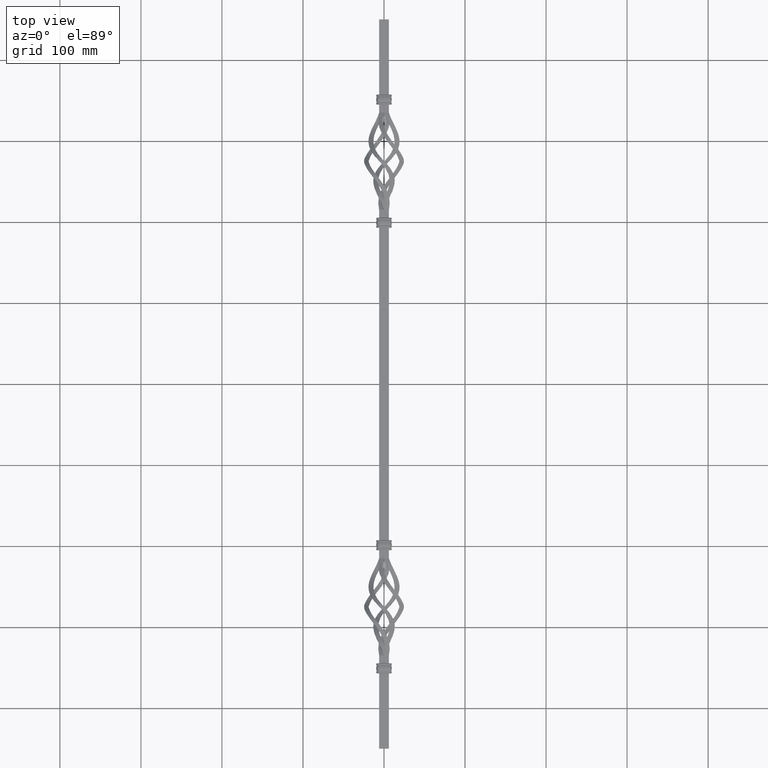
[diagram: clean part render]
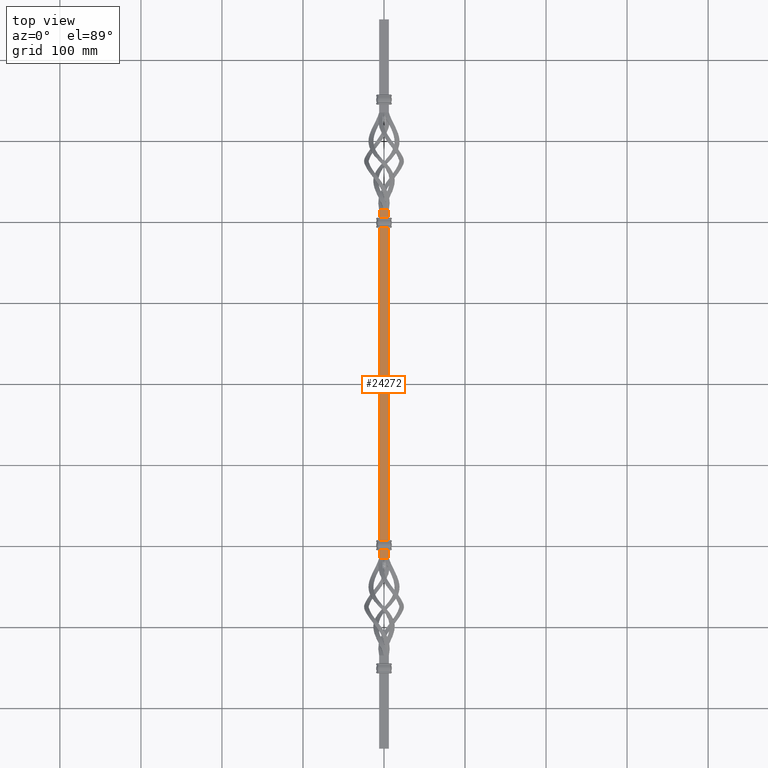
[diagram: same view with one face highlighted and labeled with its STEP entity id]
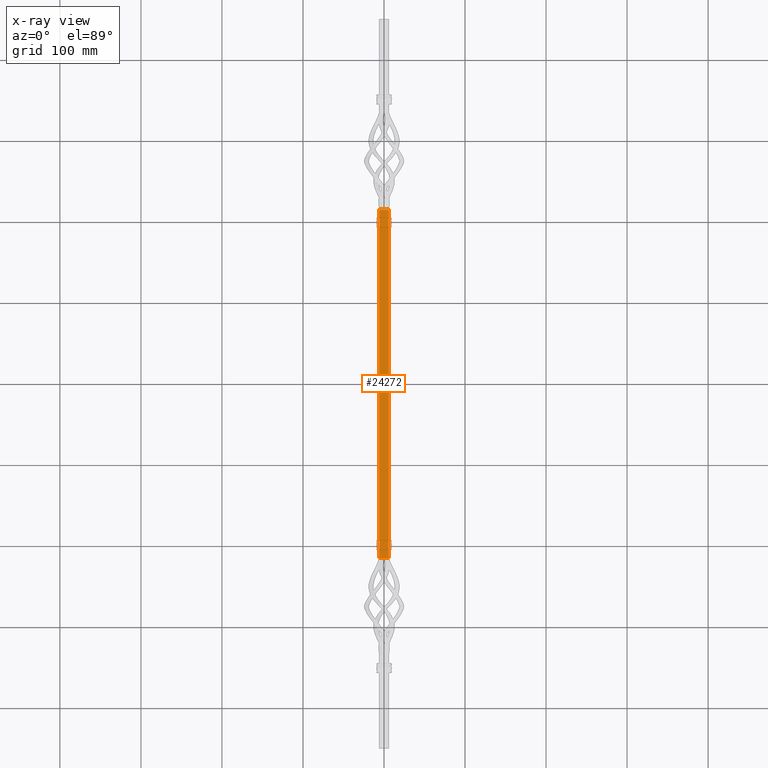
[diagram: x-ray of the same camera — body ghosted, the highlighted face saturated]
A machine part, top view. The second image highlights one B-rep face of the part: STEP entity #24272.
The next image is the same camera in x-ray: the body ghosted, the highlighted face saturated — about 0% of this face is hidden behind the body in this view.
In plain terms, the highlighted planar face has unit normal (0, 0, -1).
Its self-contained STEP definition (entity closure, byte-faithful):
#19 = DIRECTION ( 'NONE',  ( 1.000000000000000000, -0.000000000000000000, 0.000000000000000000 ) ) ;
#20 = CARTESIAN_POINT ( 'NONE',  ( 5.900000000000132694, -194.0000000000000000, 5.999999999999939604 ) ) ;
#220 = CARTESIAN_POINT ( 'NONE',  ( -6.000000000000000000, 16.97056274847694013, 5.999999999999938716 ) ) ;
#423 = VERTEX_POINT ( 'NONE', #12745 ) ;
#454 = VERTEX_POINT ( 'NONE', #20442 ) ;
#603 = CARTESIAN_POINT ( 'NONE',  ( -5.900000000000132694, -193.8739578294214994, 5.999999999999938716 ) ) ;
#763 = DIRECTION ( 'NONE',  ( -0.000000000000000000, -1.000000000000000000, -0.000000000000000000 ) ) ;
#770 = B_SPLINE_CURVE_WITH_KNOTS ( 'NONE', 3,
 ( #14130, #20899, #21221, #30813 ),
 .UNSPECIFIED., .F., .F.,
 ( 4, 4 ),
 ( 0.001730514864907466664, 0.002100971035979398369 ),
 .UNSPECIFIED. ) ;
#795 = CARTESIAN_POINT ( 'NONE',  ( 5.899999999728107625, 194.0000000000000000, 5.999999999999939604 ) ) ;
#869 = VERTEX_POINT ( 'NONE', #3052 ) ;
#1044 = LINE ( 'NONE', #29783, #25693 ) ;
#1160 = DIRECTION ( 'NONE',  ( -0.000000000000000000, -1.000000000000000000, -0.000000000000000000 ) ) ;
#1362 = EDGE_CURVE ( 'NONE', #4686, #5794, #18584, .T. ) ;
#1457 = FACE_OUTER_BOUND ( 'NONE', #14743, .T. ) ;
#1478 = CARTESIAN_POINT ( 'NONE',  ( -6.000000000000000000, -215.0000000000000284, 5.999999999999937828 ) ) ;
#1653 = CARTESIAN_POINT ( 'NONE',  ( 5.900000000000132694, -194.0000000000000000, 5.999999999999939604 ) ) ;
#1698 = CARTESIAN_POINT ( 'NONE',  ( -6.000000000000000000, 16.97056274847694013, 5.999999999999938716 ) ) ;
#1950 = CARTESIAN_POINT ( 'NONE',  ( -5.900000000272163980, 204.0000000000000284, 5.999999999999938716 ) ) ;
#2356 = LINE ( 'NONE', #1698, #23994 ) ;
#2389 = AXIS2_PLACEMENT_3D ( 'NONE', #17734, #6069, #3461 ) ;
#2447 = CARTESIAN_POINT ( 'NONE',  ( -2.720247659424102701E-10, 215.0000000000000284, 6.000000000000023093 ) ) ;
#2452 = CARTESIAN_POINT ( 'NONE',  ( 5.941145397888342394, -193.7526343189825013, 5.999999999999938716 ) ) ;
#2645 = ORIENTED_EDGE ( 'NONE', *, *, #7481, .T. ) ;
#2698 = B_SPLINE_CURVE_WITH_KNOTS ( 'NONE', 3,
 ( #23227, #11557, #20816, #14052 ),
 .UNSPECIFIED., .F., .F.,
 ( 4, 4 ),
 ( 0.001310261336107143917, 0.001680737425676016644 ),
 .UNSPECIFIED. ) ;
#2773 = CARTESIAN_POINT ( 'NONE',  ( -5.900000000000132694, -205.0000000000000284, 5.999999999999938716 ) ) ;
#2847 = LINE ( 'NONE', #17666, #8465 ) ;
#2928 = CARTESIAN_POINT ( 'NONE',  ( -6.000000000000000888, -193.6435504596053363, 5.999999999999938716 ) ) ;
#2953 = ORIENTED_EDGE ( 'NONE', *, *, #3513, .T. ) ;
#3004 = CARTESIAN_POINT ( 'NONE',  ( -5.900000000272156875, 194.0000000000000000, 5.999999999999939604 ) ) ;
#3052 = CARTESIAN_POINT ( 'NONE',  ( 5.899999999728106737, 204.0000000000000284, 5.999999999999938716 ) ) ;
#3206 = CARTESIAN_POINT ( 'NONE',  ( -5.900000000000130917, -204.1260895240804700, 5.999999999999938716 ) ) ;
#3318 = CARTESIAN_POINT ( 'NONE',  ( -6.000000000000000000, -204.3564495404118020, 5.999999999999938716 ) ) ;
#3439 = CARTESIAN_POINT ( 'NONE',  ( 5.900000000000132694, -205.0000000000000284, 5.999999999999938716 ) ) ;
#3461 = DIRECTION ( 'NONE',  ( -1.000000000000000000, 0.000000000000000000, -0.000000000000000000 ) ) ;
#3513 = EDGE_CURVE ( 'NONE', #27269, #15966, #17337, .T. ) ;
#3516 = VERTEX_POINT ( 'NONE', #14372 ) ;
#3679 = B_SPLINE_CURVE_WITH_KNOTS ( 'NONE', 3,
 ( #2928, #7846, #603, #17429 ),
 .UNSPECIFIED., .F., .F.,
 ( 4, 4 ),
 ( 0.001310261336106768350, 0.001680737425676016210 ),
 .UNSPECIFIED. ) ;
#3713 = ORIENTED_EDGE ( 'NONE', *, *, #10454, .F. ) ;
#3730 = VECTOR ( 'NONE', #11539, 1000.000000000000000 ) ;
#4686 = VERTEX_POINT ( 'NONE', #2447 ) ;
#4692 = VERTEX_POINT ( 'NONE', #19040 ) ;
#4794 = CARTESIAN_POINT ( 'NONE',  ( -6.000000000000001776, 204.3564495398905194, 5.999999999999938716 ) ) ;
#5079 = EDGE_CURVE ( 'NONE', #8742, #27269, #2356, .T. ) ;
#5339 = ORIENTED_EDGE ( 'NONE', *, *, #5803, .T. ) ;
#5570 = ORIENTED_EDGE ( 'NONE', *, *, #15289, .T. ) ;
#5794 = VERTEX_POINT ( 'NONE', #20083 ) ;
#5803 = EDGE_CURVE ( 'NONE', #28648, #8742, #10888, .T. ) ;
#6023 = EDGE_CURVE ( 'NONE', #12996, #28648, #18740, .T. ) ;
#6069 = DIRECTION ( 'NONE',  ( 0.000000000000000000, 0.000000000000000000, -1.000000000000000000 ) ) ;
#6145 = DIRECTION ( 'NONE',  ( 0.000000000000000000, 1.000000000000000000, 0.000000000000000000 ) ) ;
#6207 = VECTOR ( 'NONE', #1160, 1000.000000000000000 ) ;
#6616 = EDGE_CURVE ( 'NONE', #5794, #423, #18339, .T. ) ;
#6963 = LINE ( 'NONE', #24954, #6207 ) ;
#7481 = EDGE_CURVE ( 'NONE', #26600, #12996, #3679, .T. ) ;
#7733 = CARTESIAN_POINT ( 'NONE',  ( 5.900000000000203748, -204.0000000000000284, 5.999999999999938716 ) ) ;
#7846 = CARTESIAN_POINT ( 'NONE',  ( -5.941056446958724813, -193.7527991847809687, 5.999999999999938716 ) ) ;
#7858 = DIRECTION ( 'NONE',  ( 1.000000000000000000, -0.000000000000000000, 0.000000000000000000 ) ) ;
#7877 = ORIENTED_EDGE ( 'NONE', *, *, #30483, .T. ) ;
#7906 = EDGE_CURVE ( 'NONE', #24371, #869, #8965, .T. ) ;
#7954 = CARTESIAN_POINT ( 'NONE',  ( 5.999999999999822364, -204.3564495403943511, 5.999999999999938716 ) ) ;
#8465 = VECTOR ( 'NONE', #27033, 1000.000000000000000 ) ;
#8505 = EDGE_CURVE ( 'NONE', #28089, #14844, #18968, .T. ) ;
#8742 = VERTEX_POINT ( 'NONE', #24297 ) ;
#8965 = LINE ( 'NONE', #20796, #3730 ) ;
#9043 = VERTEX_POINT ( 'NONE', #15880 ) ;
#9256 = VECTOR ( 'NONE', #29147, 1000.000000000000000 ) ;
#9357 = CARTESIAN_POINT ( 'NONE',  ( 6.000000000009051426, -193.6435504595885675, 5.999999999999938716 ) ) ;
#9405 = VERTEX_POINT ( 'NONE', #7954 ) ;
#9712 = B_SPLINE_CURVE_WITH_KNOTS ( 'NONE', 3,
 ( #3004, #10419, #27063, #29479 ),
 .UNSPECIFIED., .F., .F.,
 ( 4, 4 ),
 ( 0.001730514864180705131, 0.002100971034118797286 ),
 .UNSPECIFIED. ) ;
#9761 = ORIENTED_EDGE ( 'NONE', *, *, #11561, .T. ) ;
#9988 = VECTOR ( 'NONE', #22088, 1000.000000000000000 ) ;
#10014 = EDGE_CURVE ( 'NONE', #21194, #24371, #27649, .T. ) ;
#10098 = ORIENTED_EDGE ( 'NONE', *, *, #6616, .F. ) ;
#10331 = EDGE_CURVE ( 'NONE', #12647, #16744, #25460, .T. ) ;
#10419 = CARTESIAN_POINT ( 'NONE',  ( -5.900000000272180856, 193.8743949883595121, 5.999999999999938716 ) ) ;
#10454 = EDGE_CURVE ( 'NONE', #9043, #4686, #19706, .T. ) ;
#10888 = B_SPLINE_CURVE_WITH_KNOTS ( 'NONE', 3,
 ( #19968, #3206, #27279, #3318 ),
 .UNSPECIFIED., .F., .F.,
 ( 4, 4 ),
 ( 0.001680737425676016861, 0.002051352701520402309 ),
 .UNSPECIFIED. ) ;
#11000 = ORIENTED_EDGE ( 'NONE', *, *, #10331, .T. ) ;
#11539 = DIRECTION ( 'NONE',  ( 0.000000000000000000, 1.000000000000000000, -0.000000000000000000 ) ) ;
#11557 = CARTESIAN_POINT ( 'NONE',  ( 5.941056446958643100, -204.2472008152188039, 5.999999999999938716 ) ) ;
#11561 = EDGE_CURVE ( 'NONE', #15966, #22549, #1044, .T. ) ;
#11669 = ORIENTED_EDGE ( 'NONE', *, *, #1362, .F. ) ;
#11746 = CARTESIAN_POINT ( 'NONE',  ( -5.900000000000132694, -194.0000000000000000, 5.999999999999939604 ) ) ;
#12010 = VECTOR ( 'NONE', #22005, 1000.000000000000000 ) ;
#12398 = ORIENTED_EDGE ( 'NONE', *, *, #8505, .T. ) ;
#12639 = ORIENTED_EDGE ( 'NONE', *, *, #6023, .T. ) ;
#12647 = VERTEX_POINT ( 'NONE', #4794 ) ;
#12745 = CARTESIAN_POINT ( 'NONE',  ( 5.999999999999830358, 204.3564495409078461, 5.999999999999938716 ) ) ;
#12996 = VERTEX_POINT ( 'NONE', #11746 ) ;
#13025 = CARTESIAN_POINT ( 'NONE',  ( -6.000000000000001776, 204.3564495398905194, 5.999999999999938716 ) ) ;
#13289 = VECTOR ( 'NONE', #14472, 1000.000000000000000 ) ;
#13339 = LINE ( 'NONE', #29586, #9988 ) ;
#13920 = EDGE_CURVE ( 'NONE', #454, #3516, #9712, .T. ) ;
#13923 = ORIENTED_EDGE ( 'NONE', *, *, #16764, .F. ) ;
#14045 = VECTOR ( 'NONE', #6145, 1000.000000000000000 ) ;
#14052 = CARTESIAN_POINT ( 'NONE',  ( 5.900000000000203748, -204.0000000000000284, 5.999999999999938716 ) ) ;
#14130 = CARTESIAN_POINT ( 'NONE',  ( 5.899999999728106737, 204.0000000000000284, 5.999999999999938716 ) ) ;
#14283 = CARTESIAN_POINT ( 'NONE',  ( -5.941135304131037742, 204.2473469721293213, 5.999999999999938716 ) ) ;
#14312 = EDGE_CURVE ( 'NONE', #21194, #4692, #6963, .T. ) ;
#14372 = CARTESIAN_POINT ( 'NONE',  ( -6.000000000005016432, 193.6435504601002151, 5.999999999999938716 ) ) ;
#14472 = DIRECTION ( 'NONE',  ( -0.000000000000000000, -1.000000000000000000, -0.000000000000000000 ) ) ;
#14743 = EDGE_LOOP ( 'NONE', ( #19153, #29815, #17702, #2645, #12639, #5339, #19328, #2953, #9761, #13923, #5570, #12398, #19674, #23079, #22892, #22174, #19195, #10098, #11669, #3713, #7877, #11000 ) ) ;
#14844 = VERTEX_POINT ( 'NONE', #1653 ) ;
#15289 = EDGE_CURVE ( 'NONE', #9405, #28089, #2698, .T. ) ;
#15438 = CARTESIAN_POINT ( 'NONE',  ( 5.899999999728107625, 194.0000000000000000, 5.999999999999939604 ) ) ;
#15548 = PLANE ( 'NONE',  #2389 ) ;
#15880 = CARTESIAN_POINT ( 'NONE',  ( -6.000000000272025957, 215.0000000000000284, 6.000000000000022204 ) ) ;
#15933 = DIRECTION ( 'NONE',  ( -0.000000000000000000, -1.000000000000000000, -0.000000000000000000 ) ) ;
#15966 = VERTEX_POINT ( 'NONE', #21417 ) ;
#16052 = CARTESIAN_POINT ( 'NONE',  ( 5.999999999999830358, 16.97056274847694013, 5.999999999999938716 ) ) ;
#16421 = CARTESIAN_POINT ( 'NONE',  ( -5.900000000272190626, 204.1253499743692146, 5.999999999999938716 ) ) ;
#16460 = CARTESIAN_POINT ( 'NONE',  ( 5.900000000000132694, -193.8739104759181657, 5.999999999999938716 ) ) ;
#16744 = VERTEX_POINT ( 'NONE', #1950 ) ;
#16764 = EDGE_CURVE ( 'NONE', #9405, #22549, #30713, .T. ) ;
#16777 = B_SPLINE_CURVE_WITH_KNOTS ( 'NONE', 3,
 ( #20, #16460, #2452, #9357 ),
 .UNSPECIFIED., .F., .F.,
 ( 4, 4 ),
 ( 0.001680737425676016210, 0.002051352701524436842 ),
 .UNSPECIFIED. ) ;
#17086 = VECTOR ( 'NONE', #7858, 1000.000000000000000 ) ;
#17229 = CARTESIAN_POINT ( 'NONE',  ( -2.720247659424102701E-10, 215.0000000000000284, 6.000000000000023093 ) ) ;
#17337 = LINE ( 'NONE', #21244, #22596 ) ;
#17405 = CARTESIAN_POINT ( 'NONE',  ( 5.899999999728144040, 193.8746500252543683, 5.999999999999938716 ) ) ;
#17429 = CARTESIAN_POINT ( 'NONE',  ( -5.900000000000132694, -194.0000000000000000, 5.999999999999939604 ) ) ;
#17567 = CARTESIAN_POINT ( 'NONE',  ( -2.719409703902780538E-10, 215.0000000000000284, 6.000000000000000888 ) ) ;
#17645 = VECTOR ( 'NONE', #15933, 1000.000000000000000 ) ;
#17666 = CARTESIAN_POINT ( 'NONE',  ( -5.900000000272156875, 205.0000000000000284, 5.999999999999938716 ) ) ;
#17702 = ORIENTED_EDGE ( 'NONE', *, *, #26560, .T. ) ;
#17734 = CARTESIAN_POINT ( 'NONE',  ( 5.999999999999830358, 16.97056274847694013, 5.999999999999938716 ) ) ;
#18288 = DIRECTION ( 'NONE',  ( -0.000000000000000000, -1.000000000000000000, -0.000000000000000000 ) ) ;
#18339 = LINE ( 'NONE', #26473, #12010 ) ;
#18584 = LINE ( 'NONE', #17567, #9256 ) ;
#18740 = LINE ( 'NONE', #2773, #29922 ) ;
#18968 = LINE ( 'NONE', #3439, #14045 ) ;
#19040 = CARTESIAN_POINT ( 'NONE',  ( 6.000000000009051426, -193.6435504595885675, 5.999999999999938716 ) ) ;
#19153 = ORIENTED_EDGE ( 'NONE', *, *, #27117, .T. ) ;
#19195 = ORIENTED_EDGE ( 'NONE', *, *, #29134, .T. ) ;
#19328 = ORIENTED_EDGE ( 'NONE', *, *, #5079, .T. ) ;
#19674 = ORIENTED_EDGE ( 'NONE', *, *, #26914, .T. ) ;
#19706 = LINE ( 'NONE', #17229, #17086 ) ;
#19968 = CARTESIAN_POINT ( 'NONE',  ( -5.900000000000131806, -204.0000000000000284, 5.999999999999938716 ) ) ;
#20083 = CARTESIAN_POINT ( 'NONE',  ( 5.999999999728059308, 215.0000000000000284, 5.999999999999938716 ) ) ;
#20442 = CARTESIAN_POINT ( 'NONE',  ( -5.900000000272156875, 194.0000000000000000, 5.999999999999939604 ) ) ;
#20796 = CARTESIAN_POINT ( 'NONE',  ( 5.899999999728107625, 205.0000000000000284, 5.999999999999938716 ) ) ;
#20816 = CARTESIAN_POINT ( 'NONE',  ( 5.900000000000130917, -204.1260421705783870, 5.999999999999938716 ) ) ;
#20899 = CARTESIAN_POINT ( 'NONE',  ( 5.899999999728129829, 204.1256050120190650, 5.999999999999938716 ) ) ;
#21194 = VERTEX_POINT ( 'NONE', #21766 ) ;
#21221 = CARTESIAN_POINT ( 'NONE',  ( 5.941072655531550062, 204.2472308575883915, 5.999999999999938716 ) ) ;
#21244 = CARTESIAN_POINT ( 'NONE',  ( 8.673617379884035472E-16, -215.0000000000000284, 5.999999999999938716 ) ) ;
#21417 = CARTESIAN_POINT ( 'NONE',  ( 8.673617379884035472E-16, -215.0000000000000284, 5.999999999999938716 ) ) ;
#21452 = CARTESIAN_POINT ( 'NONE',  ( -5.900000000000131806, -204.0000000000000284, 5.999999999999938716 ) ) ;
#21766 = CARTESIAN_POINT ( 'NONE',  ( 5.999999999999828582, 193.6435504591014762, 5.999999999999938716 ) ) ;
#22005 = DIRECTION ( 'NONE',  ( -0.000000000000000000, -1.000000000000000000, -0.000000000000000000 ) ) ;
#22088 = DIRECTION ( 'NONE',  ( -0.000000000000000000, -1.000000000000000000, -0.000000000000000000 ) ) ;
#22174 = ORIENTED_EDGE ( 'NONE', *, *, #7906, .T. ) ;
#22549 = VERTEX_POINT ( 'NONE', #24479 ) ;
#22596 = VECTOR ( 'NONE', #19, 1000.000000000000000 ) ;
#22892 = ORIENTED_EDGE ( 'NONE', *, *, #10014, .T. ) ;
#23079 = ORIENTED_EDGE ( 'NONE', *, *, #14312, .F. ) ;
#23227 = CARTESIAN_POINT ( 'NONE',  ( 5.999999999999822364, -204.3564495403943511, 5.999999999999938716 ) ) ;
#23994 = VECTOR ( 'NONE', #18288, 1000.000000000000000 ) ;
#24272 = ADVANCED_FACE ( 'NONE', ( #1457 ), #15548, .F. ) ;
#24289 = CARTESIAN_POINT ( 'NONE',  ( 5.999999999999828582, 193.6435504591014762, 5.999999999999938716 ) ) ;
#24297 = CARTESIAN_POINT ( 'NONE',  ( -6.000000000000000000, -204.3564495404118020, 5.999999999999938716 ) ) ;
#24371 = VERTEX_POINT ( 'NONE', #15438 ) ;
#24479 = CARTESIAN_POINT ( 'NONE',  ( 6.000000000000000000, -215.0000000000000284, 5.999999999999937828 ) ) ;
#24486 = CARTESIAN_POINT ( 'NONE',  ( 5.941135303835012316, 193.7526530271317426, 5.999999999999938716 ) ) ;
#24584 = CARTESIAN_POINT ( 'NONE',  ( -6.000000000000000888, -193.6435504596053363, 5.999999999999938716 ) ) ;
#24954 = CARTESIAN_POINT ( 'NONE',  ( 5.999999999999830358, 16.97056274847694013, 5.999999999999938716 ) ) ;
#25460 = B_SPLINE_CURVE_WITH_KNOTS ( 'NONE', 3,
 ( #13025, #14283, #16421, #25819 ),
 .UNSPECIFIED., .F., .F.,
 ( 4, 4 ),
 ( 0.001360810894568867608, 0.001730514864180705999 ),
 .UNSPECIFIED. ) ;
#25693 = VECTOR ( 'NONE', #30097, 1000.000000000000000 ) ;
#25819 = CARTESIAN_POINT ( 'NONE',  ( -5.900000000272163980, 204.0000000000000284, 5.999999999999938716 ) ) ;
#26473 = CARTESIAN_POINT ( 'NONE',  ( 5.999999999999830358, 16.97056274847694013, 5.999999999999938716 ) ) ;
#26560 = EDGE_CURVE ( 'NONE', #3516, #26600, #13339, .T. ) ;
#26600 = VERTEX_POINT ( 'NONE', #24584 ) ;
#26914 = EDGE_CURVE ( 'NONE', #14844, #4692, #16777, .T. ) ;
#27033 = DIRECTION ( 'NONE',  ( -0.000000000000000000, -1.000000000000000000, 0.000000000000000000 ) ) ;
#27063 = CARTESIAN_POINT ( 'NONE',  ( -5.941072655832304150, 193.7527691431415633, 5.999999999999938716 ) ) ;
#27117 = EDGE_CURVE ( 'NONE', #16744, #454, #2847, .T. ) ;
#27269 = VERTEX_POINT ( 'NONE', #1478 ) ;
#27279 = CARTESIAN_POINT ( 'NONE',  ( -5.941145397887468427, -204.2473656810149123, 5.999999999999938716 ) ) ;
#27649 = B_SPLINE_CURVE_WITH_KNOTS ( 'NONE', 3,
 ( #24289, #24486, #17405, #795 ),
 .UNSPECIFIED., .F., .F.,
 ( 4, 4 ),
 ( 0.001360810894168080565, 0.001730514864907465580 ),
 .UNSPECIFIED. ) ;
#28089 = VERTEX_POINT ( 'NONE', #7733 ) ;
#28648 = VERTEX_POINT ( 'NONE', #21452 ) ;
#29134 = EDGE_CURVE ( 'NONE', #869, #423, #770, .T. ) ;
#29147 = DIRECTION ( 'NONE',  ( 1.000000000000000000, 0.000000000000000000, -1.047444401652940007E-14 ) ) ;
#29479 = CARTESIAN_POINT ( 'NONE',  ( -6.000000000005016432, 193.6435504601002151, 5.999999999999938716 ) ) ;
#29586 = CARTESIAN_POINT ( 'NONE',  ( -6.000000000000000000, 16.97056274847694013, 5.999999999999938716 ) ) ;
#29783 = CARTESIAN_POINT ( 'NONE',  ( -1.232595164407830946E-29, -215.0000000000000284, 6.000000000000000000 ) ) ;
#29815 = ORIENTED_EDGE ( 'NONE', *, *, #13920, .T. ) ;
#29922 = VECTOR ( 'NONE', #763, 1000.000000000000000 ) ;
#30097 = DIRECTION ( 'NONE',  ( 1.000000000000000000, 0.000000000000000000, -1.047444401652940007E-14 ) ) ;
#30483 = EDGE_CURVE ( 'NONE', #9043, #12647, #30822, .T. ) ;
#30713 = LINE ( 'NONE', #16052, #17645 ) ;
#30813 = CARTESIAN_POINT ( 'NONE',  ( 5.999999999999830358, 204.3564495409078461, 5.999999999999938716 ) ) ;
#30822 = LINE ( 'NONE', #220, #13289 ) ;